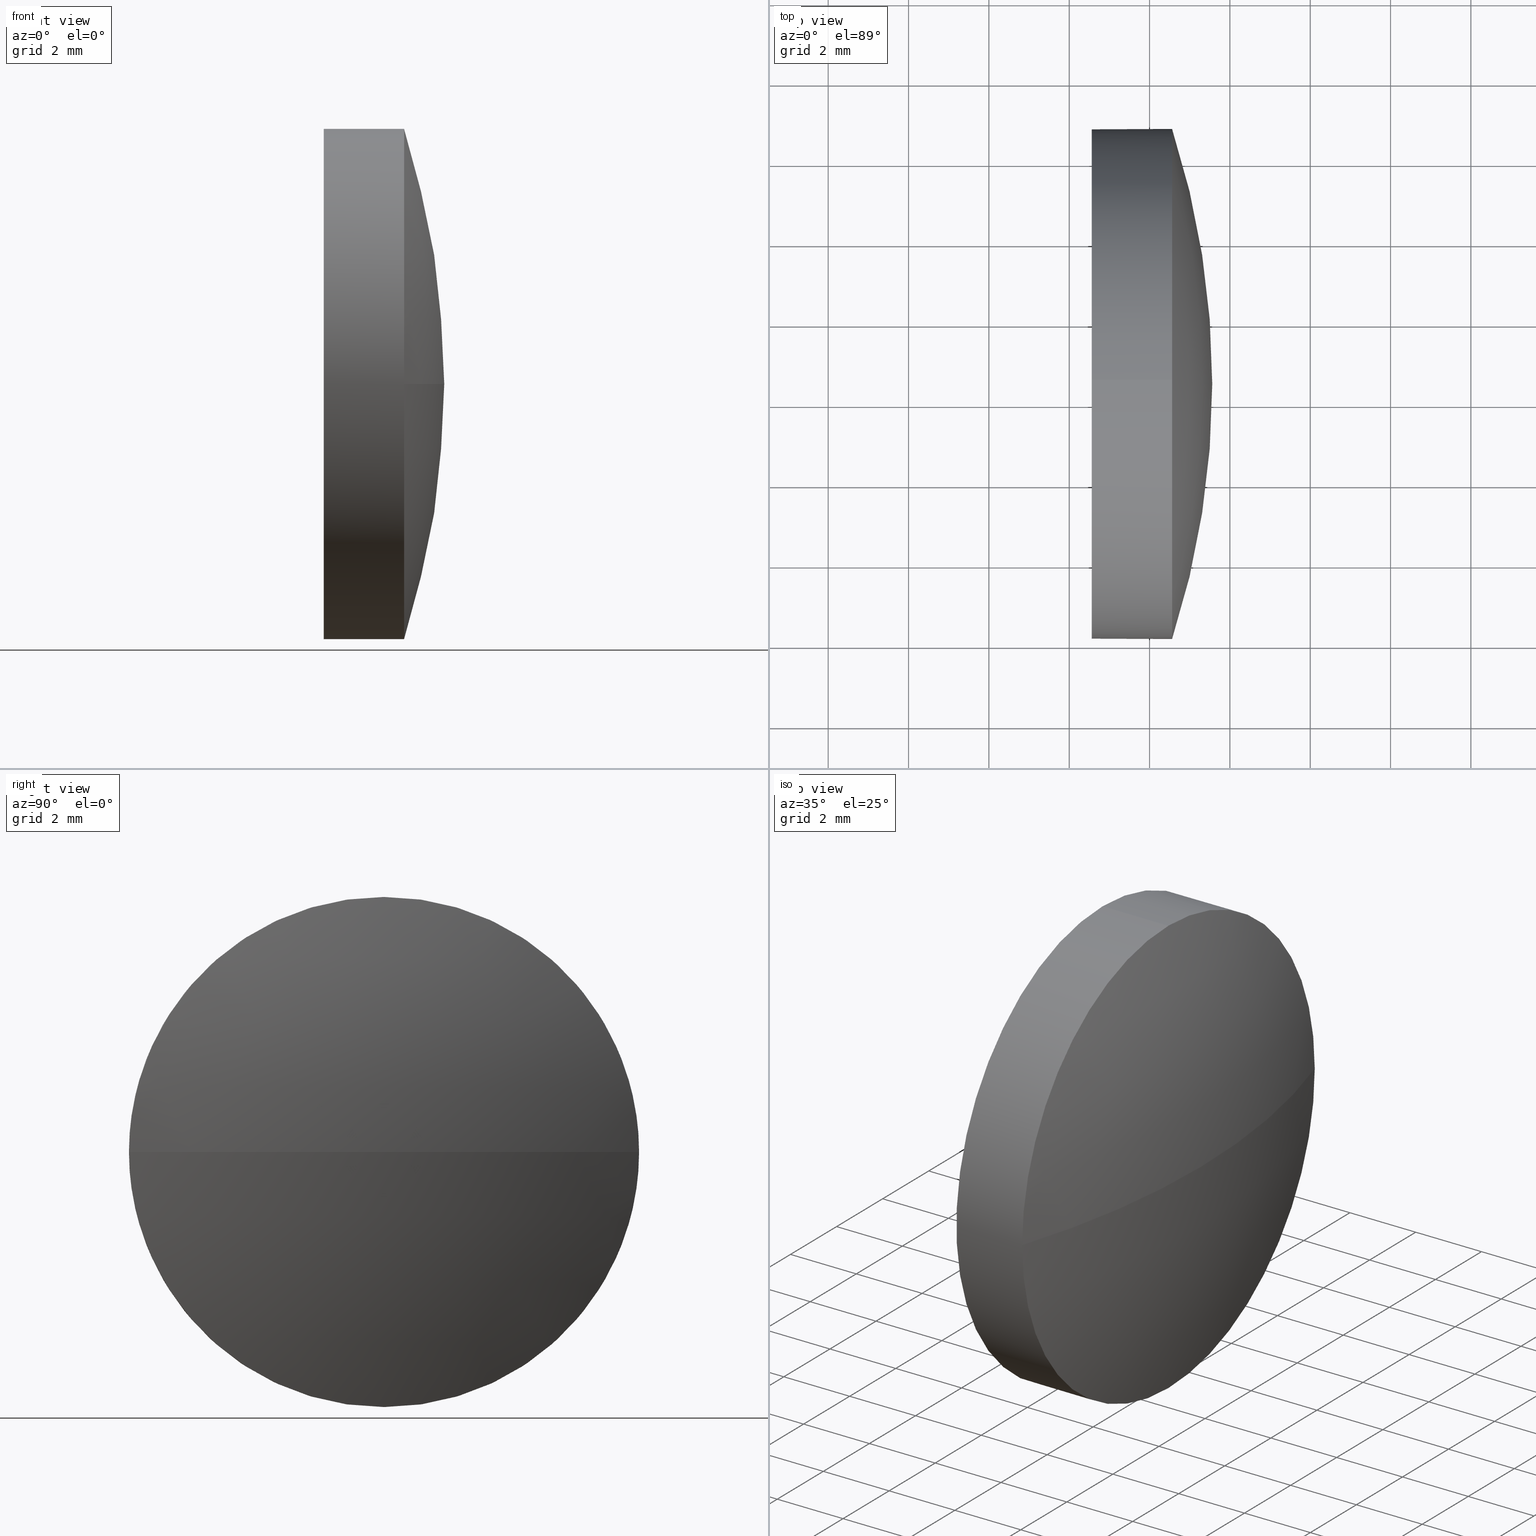
[diagram: canonical four-view strip — front | top / right | iso, engineering-drawing reading convention]
A machine part, canonical four-view strip (front | top / right | iso — engineering-drawing reading convention). The complete STEP part file that produces these views, byte-faithful:
ISO-10303-21;
HEADER;
FILE_DESCRIPTION (( 'STEP AP214' ),
    '1' );
FILE_NAME ('100464.STEP',
    '2019-06-10T07:15:31',
    ( '' ),
    ( '' ),
    'SwSTEP 2.0',
    'SolidWorks 2016',
    '' );
FILE_SCHEMA (( 'AUTOMOTIVE_DESIGN' ));
ENDSEC;

DATA;
#1 = CYLINDRICAL_SURFACE ( 'NONE', #99, 6.350000000000022700 ) ;
#2 = CARTESIAN_POINT ( 'NONE',  ( 514.8997211574720700, 126.4674666773099600, 0.0000000000000000000 ) ) ;
#3 = DIRECTION ( 'NONE',  ( 0.0000000000000000000, 0.0000000000000000000, 1.000000000000000000 ) ) ;
#4 = CIRCLE ( 'NONE', #116, 6.350000000000022700 ) ;
#5 = EDGE_CURVE ( 'NONE', #26, #20, #4, .T. ) ;
#6 = COLOUR_RGB ( '',1.000000000000000000, 1.000000000000000000, 1.000000000000000000 ) ;
#7 = DIRECTION ( 'NONE',  ( -1.000000000000000000, -0.0000000000000000000, -0.0000000000000000000 ) ) ;
#8 = APPLICATION_CONTEXT ( 'automotive_design' ) ;
#9 = ORIENTED_EDGE ( 'NONE', *, *, #22, .T. ) ;
#10 = DIRECTION ( 'NONE',  ( 0.0000000000000000000, 1.000000000000000000, 0.0000000000000000000 ) ) ;
#11 = EDGE_CURVE ( 'NONE', #20, #161, #38, .T. ) ;
#12 = VERTEX_POINT ( 'NONE', #139 ) ;
#13 = SURFACE_STYLE_USAGE ( .BOTH. , #31 ) ;
#14 = AXIS2_PLACEMENT_3D ( 'NONE', #28, #40, #120 ) ;
#15 = ORIENTED_EDGE ( 'NONE', *, *, #145, .F. ) ;
#16 = CARTESIAN_POINT ( 'NONE',  ( 534.5609711574720700, 132.8174666773100200, 0.0000000000000000000 ) ) ;
#17 = DIRECTION ( 'NONE',  ( -0.0000000000000000000, 0.0000000000000000000, -1.000000000000000000 ) ) ;
#18 = ORIENTED_EDGE ( 'NONE', *, *, #136, .T. ) ;
#19 = CARTESIAN_POINT ( 'NONE',  ( 530.3004400116176400, 126.4674666773100100, 0.0000000000000000000 ) ) ;
#20 = VERTEX_POINT ( 'NONE', #174 ) ;
#21 = CARTESIAN_POINT ( 'NONE',  ( 0.0000000000000000000, 0.0000000000000000000, 0.0000000000000000000 ) ) ;
#22 = EDGE_CURVE ( 'NONE', #163, #23, #106, .T. ) ;
#23 = VERTEX_POINT ( 'NONE', #84 ) ;
#24 = DIRECTION ( 'NONE',  ( 0.0000000000000000000, 0.0000000000000000000, 1.000000000000000000 ) ) ;
#25 = PRODUCT_CONTEXT ( 'NONE', #8, 'mechanical' ) ;
#26 = VERTEX_POINT ( 'NONE', #43 ) ;
#27 = STYLED_ITEM ( 'NONE', ( #78 ), #144 ) ;
#28 = CARTESIAN_POINT ( 'NONE',  ( 534.5609711574720700, 126.4674666773100100, 0.0000000000000000000 ) ) ;
#29 = SURFACE_STYLE_FILL_AREA ( #36 ) ;
#30 = STYLED_ITEM ( 'NONE', ( #92 ), #81 ) ;
#31 = SURFACE_SIDE_STYLE ('',( #152 ) ) ;
#32 = SURFACE_STYLE_USAGE ( .BOTH. , #113 ) ;
#33 = PRESENTATION_LAYER_ASSIGNMENT (  '', '', ( #27 ) ) ;
#34 = EDGE_LOOP ( 'NONE', ( #58, #47, #156, #118 ) ) ;
#35 = CIRCLE ( 'NONE', #102, 6.350000000000022700 ) ;
#36 = FILL_AREA_STYLE ('',( #53 ) ) ;
#37 = AXIS2_PLACEMENT_3D ( 'NONE', #21, #143, #54 ) ;
#38 = CIRCLE ( 'NONE', #14, 6.350000000000022700 ) ;
#39 = SHAPE_DEFINITION_REPRESENTATION ( #125, #81 ) ;
#40 = DIRECTION ( 'NONE',  ( -1.000000000000000000, -0.0000000000000000000, -0.0000000000000000000 ) ) ;
#41 = FILL_AREA_STYLE_COLOUR ( '', #6 ) ;
#42 = AXIS2_PLACEMENT_3D ( 'NONE', #147, #164, #182 ) ;
#43 = CARTESIAN_POINT ( 'NONE',  ( 534.5609711574720700, 126.4674666773100100, -6.350000000000022700 ) ) ;
#44 = DIRECTION ( 'NONE',  ( 0.0000000000000000000, 1.000000000000000000, 0.0000000000000000000 ) ) ;
#45 = VECTOR ( 'NONE', #175, 1000.000000000000000 ) ;
#46 = EDGE_LOOP ( 'NONE', ( #52, #18, #85, #171 ) ) ;
#47 = ORIENTED_EDGE ( 'NONE', *, *, #157, .T. ) ;
#48 = UNCERTAINTY_MEASURE_WITH_UNIT (LENGTH_MEASURE( 1.000000000000000100E-005 ), #115, 'distance_accuracy_value', 'NONE');
#49 = FACE_OUTER_BOUND ( 'NONE', #117, .T. ) ;
#50 = DIRECTION ( 'NONE',  ( -1.000000000000000000, -0.0000000000000000000, -0.0000000000000000000 ) ) ;
#51 = PRESENTATION_LAYER_ASSIGNMENT (  '', '', ( #30 ) ) ;
#52 = ORIENTED_EDGE ( 'NONE', *, *, #157, .F. ) ;
#53 = FILL_AREA_STYLE_COLOUR ( '', #170 ) ;
#54 = DIRECTION ( 'NONE',  ( 1.000000000000000000, 0.0000000000000000000, 0.0000000000000000000 ) ) ;
#55 = ORIENTED_EDGE ( 'NONE', *, *, #5, .T. ) ;
#56 = CIRCLE ( 'NONE', #119, 20.66124999999996300 ) ;
#57 = ORIENTED_EDGE ( 'NONE', *, *, #172, .F. ) ;
#58 = ORIENTED_EDGE ( 'NONE', *, *, #136, .F. ) ;
#59 = LINE ( 'NONE', #60, #45 ) ;
#60 = CARTESIAN_POINT ( 'NONE',  ( 530.3004400116176400, 126.4674666773100100, 6.350000000000022700 ) ) ;
#61 = ORIENTED_EDGE ( 'NONE', *, *, #172, .T. ) ;
#62 = CARTESIAN_POINT ( 'NONE',  ( 514.8997211574720700, 126.4674666773099600, 0.0000000000000000000 ) ) ;
#63 = PRODUCT_DEFINITION_FORMATION_WITH_SPECIFIED_SOURCE ( '�κ�', '', #178, .NOT_KNOWN. ) ;
#64 = EDGE_CURVE ( 'NONE', #126, #26, #35, .T. ) ;
#65 = DIRECTION ( 'NONE',  ( 0.0000000000000000000, 0.0000000000000000000, -1.000000000000000000 ) ) ;
#66 = FACE_OUTER_BOUND ( 'NONE', #34, .T. ) ;
#67 = CARTESIAN_POINT ( 'NONE',  ( 532.5609711574720700, 126.4674666773100100, 0.0000000000000000000 ) ) ;
#68 = AXIS2_PLACEMENT_3D ( 'NONE', #132, #50, #104 ) ;
#69 = CARTESIAN_POINT ( 'NONE',  ( 534.5609711574720700, 126.4674666773100100, 0.0000000000000000000 ) ) ;
#70 = FACE_OUTER_BOUND ( 'NONE', #129, .T. ) ;
#71 = FILL_AREA_STYLE ('',( #41 ) ) ;
#72 = AXIS2_PLACEMENT_3D ( 'NONE', #122, #137, #10 ) ;
#73 = ADVANCED_FACE ( 'NONE', ( #146 ), #142, .T. ) ;
#74 = CARTESIAN_POINT ( 'NONE',  ( 514.8997211574720700, 126.4674666773099600, 0.0000000000000000000 ) ) ;
#75 = EDGE_LOOP ( 'NONE', ( #160, #55, #88, #61, #82 ) ) ;
#76 =( NAMED_UNIT ( * ) PLANE_ANGLE_UNIT ( ) SI_UNIT ( $, .RADIAN. ) );
#77 = CIRCLE ( 'NONE', #124, 20.66124999999996300 ) ;
#78 = PRESENTATION_STYLE_ASSIGNMENT (( #13 ) ) ;
#79 = CARTESIAN_POINT ( 'NONE',  ( 534.5609711574720700, 126.4674666773100100, 0.0000000000000000000 ) ) ;
#80 = AXIS2_PLACEMENT_3D ( 'NONE', #79, #7, #24 ) ;
#81 = ADVANCED_BREP_SHAPE_REPRESENTATION ( '100464', ( #144, #37 ), #133 ) ;
#82 = ORIENTED_EDGE ( 'NONE', *, *, #22, .F. ) ;
#83 =( NAMED_UNIT ( * ) PLANE_ANGLE_UNIT ( ) SI_UNIT ( $, .RADIAN. ) );
#84 = CARTESIAN_POINT ( 'NONE',  ( 532.5609711574720700, 126.4674666773100100, 6.350000000000022700 ) ) ;
#85 = ORIENTED_EDGE ( 'NONE', *, *, #5, .F. ) ;
#86 = CIRCLE ( 'NONE', #80, 6.350000000000022700 ) ;
#87 = AXIS2_PLACEMENT_3D ( 'NONE', #62, #17, #44 ) ;
#88 = ORIENTED_EDGE ( 'NONE', *, *, #11, .T. ) ;
#89 = CLOSED_SHELL ( 'NONE', ( #95, #73, #186, #150, #151 ) ) ;
#90 = ORIENTED_EDGE ( 'NONE', *, *, #128, .T. ) ;
#91 = UNCERTAINTY_MEASURE_WITH_UNIT (LENGTH_MEASURE( 1.000000000000000100E-005 ), #159, 'distance_accuracy_value', 'NONE');
#92 = PRESENTATION_STYLE_ASSIGNMENT (( #32 ) ) ;
#93 = ORIENTED_EDGE ( 'NONE', *, *, #64, .T. ) ;
#94 = DIRECTION ( 'NONE',  ( 0.0000000000000000000, 0.0000000000000000000, 1.000000000000000000 ) ) ;
#95 = ADVANCED_FACE ( 'NONE', ( #70 ), #1, .T. ) ;
#96 = CARTESIAN_POINT ( 'NONE',  ( 530.3004400116176400, 126.4674666773100100, -6.350000000000022700 ) ) ;
#97 = DIRECTION ( 'NONE',  ( -1.000000000000000000, -0.0000000000000000000, -0.0000000000000000000 ) ) ;
#98 = DIRECTION ( 'NONE',  ( 0.0000000000000000000, 1.000000000000000000, 1.224646799147354200E-016 ) ) ;
#99 = AXIS2_PLACEMENT_3D ( 'NONE', #19, #173, #3 ) ;
#100 = FACE_OUTER_BOUND ( 'NONE', #75, .T. ) ;
#101 = CARTESIAN_POINT ( 'NONE',  ( 532.5609711574720700, 126.4674666773100100, -6.350000000000022700 ) ) ;
#102 = AXIS2_PLACEMENT_3D ( 'NONE', #153, #169, #185 ) ;
#103 = APPLICATION_PROTOCOL_DEFINITION ( 'draft international standard', 'automotive_design', 1998, #134 ) ;
#104 = DIRECTION ( 'NONE',  ( 0.0000000000000000000, 0.0000000000000000000, 1.000000000000000000 ) ) ;
#105 =( NAMED_UNIT ( * ) PLANE_ANGLE_UNIT ( ) SI_UNIT ( $, .RADIAN. ) );
#106 = CIRCLE ( 'NONE', #183, 6.350000000000022700 ) ;
#107 = MECHANICAL_DESIGN_GEOMETRIC_PRESENTATION_REPRESENTATION (  '', ( #30 ), #166 ) ;
#108 = DIRECTION ( 'NONE',  ( 0.0000000000000000000, 1.224646799147353200E-016, -1.000000000000000000 ) ) ;
#109 = DIRECTION ( 'NONE',  ( -1.000000000000000000, -0.0000000000000000000, -0.0000000000000000000 ) ) ;
#110 = LINE ( 'NONE', #96, #114 ) ;
#111 = PRODUCT_RELATED_PRODUCT_CATEGORY ( 'part', '', ( #178 ) ) ;
#112 = PRODUCT_DEFINITION_CONTEXT ( 'detailed design', #134, 'design' ) ;
#113 = SURFACE_SIDE_STYLE ('',( #29 ) ) ;
#114 = VECTOR ( 'NONE', #109, 1000.000000000000000 ) ;
#115 =( LENGTH_UNIT ( ) NAMED_UNIT ( * ) SI_UNIT ( .MILLI., .METRE. ) );
#116 = AXIS2_PLACEMENT_3D ( 'NONE', #69, #135, #94 ) ;
#117 = EDGE_LOOP ( 'NONE', ( #167, #9 ) ) ;
#118 = ORIENTED_EDGE ( 'NONE', *, *, #11, .F. ) ;
#119 = AXIS2_PLACEMENT_3D ( 'NONE', #74, #141, #140 ) ;
#120 = DIRECTION ( 'NONE',  ( 0.0000000000000000000, 0.0000000000000000000, 1.000000000000000000 ) ) ;
#121 = ORIENTED_EDGE ( 'NONE', *, *, #149, .T. ) ;
#122 = CARTESIAN_POINT ( 'NONE',  ( 514.8997211574720700, 126.4674666773099600, 0.0000000000000000000 ) ) ;
#123 =( LENGTH_UNIT ( ) NAMED_UNIT ( * ) SI_UNIT ( .MILLI., .METRE. ) );
#124 = AXIS2_PLACEMENT_3D ( 'NONE', #2, #108, #98 ) ;
#125 = PRODUCT_DEFINITION_SHAPE ( 'NONE', 'NONE',  #127 ) ;
#126 = VERTEX_POINT ( 'NONE', #16 ) ;
#127 = PRODUCT_DEFINITION ( 'δ֪', '', #63, #112 ) ;
#128 = EDGE_CURVE ( 'NONE', #26, #163, #110, .T. ) ;
#129 = EDGE_LOOP ( 'NONE', ( #93, #90, #15, #57, #121 ) ) ;
#130 =( NAMED_UNIT ( * ) SI_UNIT ( $, .STERADIAN. ) SOLID_ANGLE_UNIT ( ) );
#131 = CIRCLE ( 'NONE', #42, 6.350000000000022700 ) ;
#132 = CARTESIAN_POINT ( 'NONE',  ( 530.3004400116176400, 126.4674666773100100, 0.0000000000000000000 ) ) ;
#133 =( GEOMETRIC_REPRESENTATION_CONTEXT ( 3 ) GLOBAL_UNCERTAINTY_ASSIGNED_CONTEXT ( ( #91 ) ) GLOBAL_UNIT_ASSIGNED_CONTEXT ( ( #159, #76, #176 ) ) REPRESENTATION_CONTEXT ( 'NONE', 'WORKASPACE' ) );
#134 = APPLICATION_CONTEXT ( 'automotive_design' ) ;
#135 = DIRECTION ( 'NONE',  ( -1.000000000000000000, -0.0000000000000000000, -0.0000000000000000000 ) ) ;
#136 = EDGE_CURVE ( 'NONE', #12, #20, #77, .T. ) ;
#137 = DIRECTION ( 'NONE',  ( -0.0000000000000000000, 0.0000000000000000000, -1.000000000000000000 ) ) ;
#138 =( NAMED_UNIT ( * ) SI_UNIT ( $, .STERADIAN. ) SOLID_ANGLE_UNIT ( ) );
#139 = CARTESIAN_POINT ( 'NONE',  ( 535.5609711574720700, 126.4674666773099600, 0.0000000000000000000 ) ) ;
#140 = DIRECTION ( 'NONE',  ( 1.000000000000000000, 0.0000000000000000000, 0.0000000000000000000 ) ) ;
#141 = DIRECTION ( 'NONE',  ( -0.0000000000000000000, 0.0000000000000000000, 1.000000000000000000 ) ) ;
#142 = SPHERICAL_SURFACE ( 'NONE', #72, 20.66124999999997800 ) ;
#143 = DIRECTION ( 'NONE',  ( 0.0000000000000000000, 0.0000000000000000000, 1.000000000000000000 ) ) ;
#144 = MANIFOLD_SOLID_BREP ( '��ת1', #89 ) ;
#145 = EDGE_CURVE ( 'NONE', #23, #163, #131, .T. ) ;
#146 = FACE_OUTER_BOUND ( 'NONE', #46, .T. ) ;
#147 = CARTESIAN_POINT ( 'NONE',  ( 532.5609711574720700, 126.4674666773100100, 0.0000000000000000000 ) ) ;
#148 = APPLICATION_PROTOCOL_DEFINITION ( 'draft international standard', 'automotive_design', 1998, #8 ) ;
#149 = EDGE_CURVE ( 'NONE', #161, #126, #86, .T. ) ;
#150 = ADVANCED_FACE ( 'NONE', ( #100 ), #162, .T. ) ;
#151 = ADVANCED_FACE ( 'NONE', ( #49 ), #181, .F. ) ;
#152 = SURFACE_STYLE_FILL_AREA ( #71 ) ;
#153 = CARTESIAN_POINT ( 'NONE',  ( 534.5609711574720700, 126.4674666773100100, 0.0000000000000000000 ) ) ;
#154 = CARTESIAN_POINT ( 'NONE',  ( 532.5609711574720700, 126.4674666773100100, 0.0000000000000000000 ) ) ;
#155 = DIRECTION ( 'NONE',  ( 0.0000000000000000000, 0.0000000000000000000, 1.000000000000000000 ) ) ;
#156 = ORIENTED_EDGE ( 'NONE', *, *, #149, .F. ) ;
#157 = EDGE_CURVE ( 'NONE', #12, #126, #56, .T. ) ;
#158 = CARTESIAN_POINT ( 'NONE',  ( 534.5609711574720700, 126.4674666773100100, 6.350000000000022700 ) ) ;
#159 =( LENGTH_UNIT ( ) NAMED_UNIT ( * ) SI_UNIT ( .MILLI., .METRE. ) );
#160 = ORIENTED_EDGE ( 'NONE', *, *, #128, .F. ) ;
#161 = VERTEX_POINT ( 'NONE', #158 ) ;
#162 = CYLINDRICAL_SURFACE ( 'NONE', #68, 6.350000000000022700 ) ;
#163 = VERTEX_POINT ( 'NONE', #101 ) ;
#164 = DIRECTION ( 'NONE',  ( -1.000000000000000000, -0.0000000000000000000, -0.0000000000000000000 ) ) ;
#165 = DIRECTION ( 'NONE',  ( 1.000000000000000000, 0.0000000000000000000, 0.0000000000000000000 ) ) ;
#166 =( GEOMETRIC_REPRESENTATION_CONTEXT ( 3 ) GLOBAL_UNCERTAINTY_ASSIGNED_CONTEXT ( ( #48 ) ) GLOBAL_UNIT_ASSIGNED_CONTEXT ( ( #115, #105, #130 ) ) REPRESENTATION_CONTEXT ( 'NONE', 'WORKASPACE' ) );
#167 = ORIENTED_EDGE ( 'NONE', *, *, #145, .T. ) ;
#168 = MECHANICAL_DESIGN_GEOMETRIC_PRESENTATION_REPRESENTATION (  '', ( #27 ), #179 ) ;
#169 = DIRECTION ( 'NONE',  ( -1.000000000000000000, -0.0000000000000000000, -0.0000000000000000000 ) ) ;
#170 = COLOUR_RGB ( '',1.000000000000000000, 1.000000000000000000, 1.000000000000000000 ) ;
#171 = ORIENTED_EDGE ( 'NONE', *, *, #64, .F. ) ;
#172 = EDGE_CURVE ( 'NONE', #161, #23, #59, .T. ) ;
#173 = DIRECTION ( 'NONE',  ( -1.000000000000000000, -0.0000000000000000000, -0.0000000000000000000 ) ) ;
#174 = CARTESIAN_POINT ( 'NONE',  ( 534.5609711574720700, 120.1174666773099600, -7.776507174585702000E-016 ) ) ;
#175 = DIRECTION ( 'NONE',  ( -1.000000000000000000, -0.0000000000000000000, -0.0000000000000000000 ) ) ;
#176 =( NAMED_UNIT ( * ) SI_UNIT ( $, .STERADIAN. ) SOLID_ANGLE_UNIT ( ) );
#177 = AXIS2_PLACEMENT_3D ( 'NONE', #67, #165, #65 ) ;
#178 = PRODUCT ( '100464', '100464', '', ( #25 ) ) ;
#179 =( GEOMETRIC_REPRESENTATION_CONTEXT ( 3 ) GLOBAL_UNCERTAINTY_ASSIGNED_CONTEXT ( ( #184 ) ) GLOBAL_UNIT_ASSIGNED_CONTEXT ( ( #123, #83, #138 ) ) REPRESENTATION_CONTEXT ( 'NONE', 'WORKASPACE' ) );
#180 = SPHERICAL_SURFACE ( 'NONE', #87, 20.66124999999997800 ) ;
#181 = PLANE ( 'NONE',  #177 ) ;
#182 = DIRECTION ( 'NONE',  ( 0.0000000000000000000, 0.0000000000000000000, 1.000000000000000000 ) ) ;
#183 = AXIS2_PLACEMENT_3D ( 'NONE', #154, #97, #155 ) ;
#184 = UNCERTAINTY_MEASURE_WITH_UNIT (LENGTH_MEASURE( 1.000000000000000100E-005 ), #123, 'distance_accuracy_value', 'NONE');
#185 = DIRECTION ( 'NONE',  ( 0.0000000000000000000, 0.0000000000000000000, 1.000000000000000000 ) ) ;
#186 = ADVANCED_FACE ( 'NONE', ( #66 ), #180, .T. ) ;
ENDSEC;
END-ISO-10303-21;
